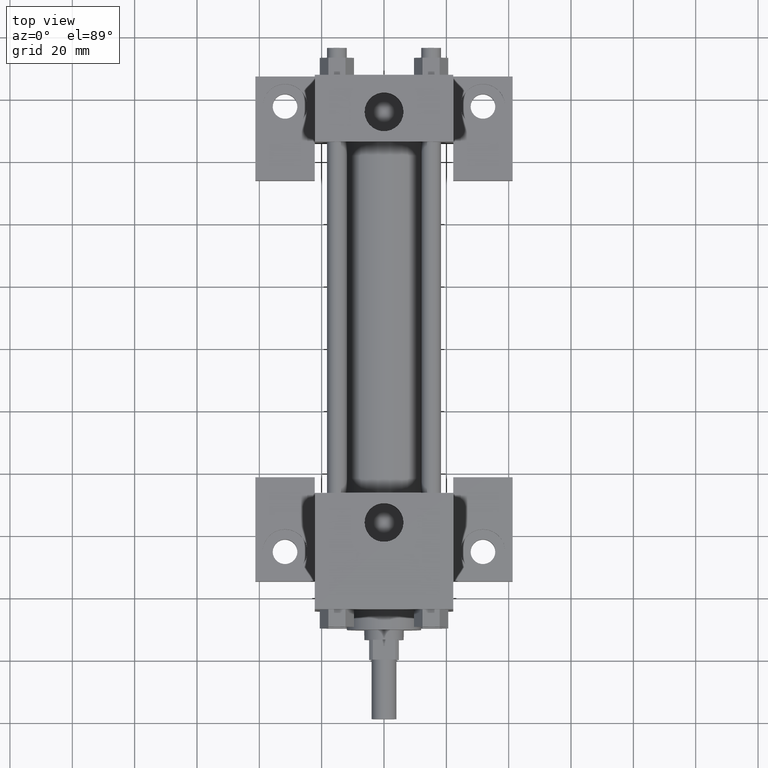
[diagram: clean part render]
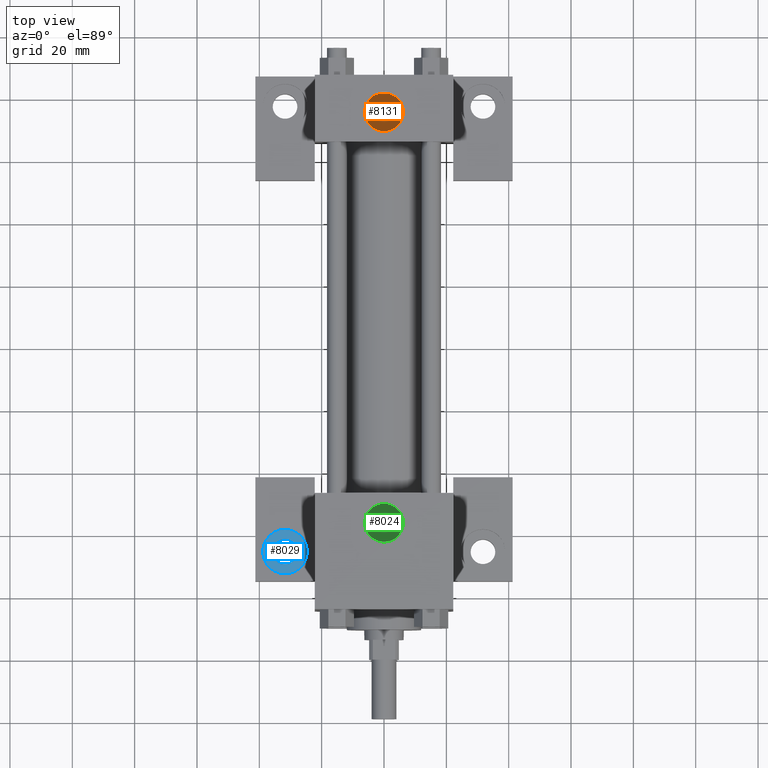
[diagram: same view with three faces highlighted in distinct colors, each labeled with its STEP entity id]
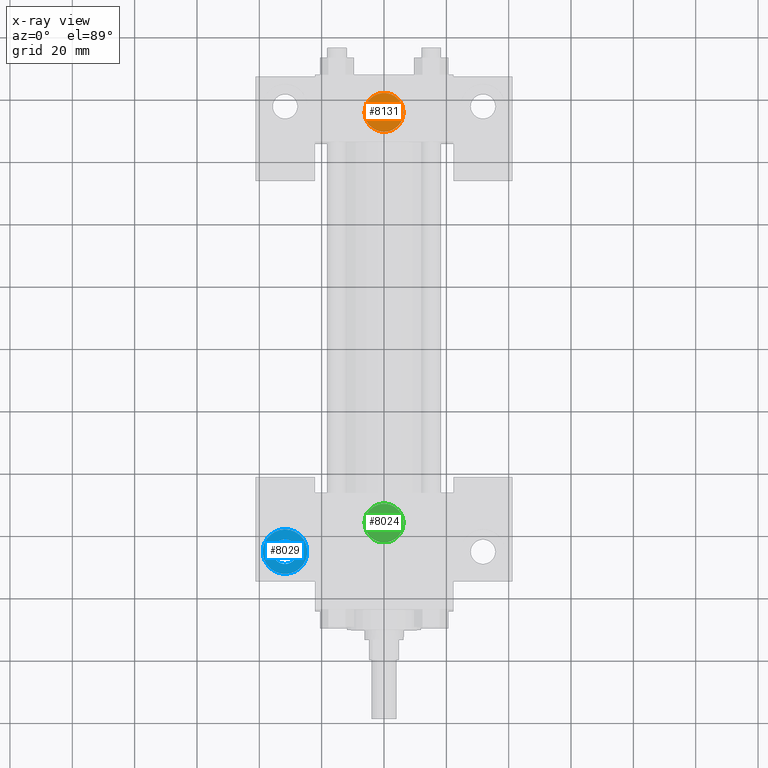
[diagram: x-ray of the same camera — body ghosted, the three highlighted faces saturated]
A machine part, top view with three faces highlighted in distinct colors.
The next image is the same camera in x-ray (body ghosted, the three faces saturated) — at least one of them is partly hidden behind the body in this view.
Their STEP definitions:

[orange] entity #8131 — the highlighted planar face has unit normal (0, 0, -1).
#5125=EDGE_CURVE('',#5131,#5131,#5126,.T.);
#5126=CIRCLE('',#5127,6.243320000E+000);
#5127=AXIS2_PLACEMENT_3D('',#5128,#5129,#5130);
#5128=CARTESIAN_POINT('',(0.000000000E+000,1.754187500E+002,1.219200000E+001));
#5129=DIRECTION('',(0.0E+000,0.0E+000,1.0E+000));
#5130=DIRECTION('',(-1.0E+000,0.0E+000,0.0E+000));
#5131=VERTEX_POINT('',#5132);
#5132=CARTESIAN_POINT('',(-6.243320000E+000,1.754187500E+002,1.219200000E+001));
#5147=FACE_OUTER_BOUND('',#5148,.T.);
#5148=EDGE_LOOP('',(#5149));
#5149=ORIENTED_EDGE('',*,*,#5125,.T.);
#5150=PLANE('',#5151);
#5151=AXIS2_PLACEMENT_3D('',#5152,#5153,#5154);
#5152=CARTESIAN_POINT('',(0.000000000E+000,1.754187500E+002,1.219200000E+001));
#5153=DIRECTION('',(0.0E+000,0.0E+000,-1.0E+000));
#5154=DIRECTION('',(-1.0E+000,0.0E+000,0.0E+000));
#8131=ADVANCED_FACE('',(#5147),#5150,.F.);

[blue] entity #8029 — the highlighted planar face has unit normal (0, 0, -1).
#1473=EDGE_CURVE('',#1479,#1479,#1474,.T.);
#1474=CIRCLE('',#1475,7.143750000E+000);
#1475=AXIS2_PLACEMENT_3D('',#1476,#1477,#1478);
#1476=CARTESIAN_POINT('',(-3.175000000E+001,3.492500000E+001,-1.270000000E+001));
#1477=DIRECTION('',(0.0E+000,0.0E+000,1.0E+000));
#1478=DIRECTION('',(0.0E+000,-1.0E+000,0.0E+000));
#1479=VERTEX_POINT('',#1480);
#1480=CARTESIAN_POINT('',(-3.175000000E+001,2.778125000E+001,-1.270000000E+001));
#1495=FACE_OUTER_BOUND('',#1497,.T.);
#1496=FACE_BOUND('',#1498,.T.);
#1497=EDGE_LOOP('',(#1499));
#1498=EDGE_LOOP('',(#1500));
#1499=ORIENTED_EDGE('',*,*,#1473,.T.);
#1500=ORIENTED_EDGE('',*,*,#1501,.F.);
#1501=EDGE_CURVE('',#1507,#1507,#1502,.F.);
#1502=CIRCLE('',#1503,3.968750000E+000);
#1503=AXIS2_PLACEMENT_3D('',#1504,#1505,#1506);
#1504=CARTESIAN_POINT('',(-3.175000000E+001,3.492500000E+001,-1.270000000E+001));
#1505=DIRECTION('',(0.0E+000,0.0E+000,-1.0E+000));
#1506=DIRECTION('',(-1.0E+000,0.0E+000,0.0E+000));
#1507=VERTEX_POINT('',#1508);
#1508=CARTESIAN_POINT('',(-3.571875000E+001,3.492500000E+001,-1.270000000E+001));
#1509=PLANE('',#1510);
#1510=AXIS2_PLACEMENT_3D('',#1511,#1512,#1513);
#1511=CARTESIAN_POINT('',(-3.175000000E+001,3.492500000E+001,-1.270000000E+001));
#1512=DIRECTION('',(0.0E+000,0.0E+000,-1.0E+000));
#1513=DIRECTION('',(-1.0E+000,0.0E+000,0.0E+000));
#8029=ADVANCED_FACE('',(#1495,#1496),#1509,.F.);

[green] entity #8024 — the highlighted planar face has unit normal (0, 0, -1).
#1373=EDGE_CURVE('',#1379,#1379,#1374,.T.);
#1374=CIRCLE('',#1375,6.243320000E+000);
#1375=AXIS2_PLACEMENT_3D('',#1376,#1377,#1378);
#1376=CARTESIAN_POINT('',(0.000000000E+000,4.365625000E+001,1.219200000E+001));
#1377=DIRECTION('',(0.0E+000,0.0E+000,1.0E+000));
#1378=DIRECTION('',(-1.0E+000,0.0E+000,0.0E+000));
#1379=VERTEX_POINT('',#1380);
#1380=CARTESIAN_POINT('',(-6.243320000E+000,4.365625000E+001,1.219200000E+001));
#1395=FACE_OUTER_BOUND('',#1396,.T.);
#1396=EDGE_LOOP('',(#1397));
#1397=ORIENTED_EDGE('',*,*,#1373,.T.);
#1398=PLANE('',#1399);
#1399=AXIS2_PLACEMENT_3D('',#1400,#1401,#1402);
#1400=CARTESIAN_POINT('',(0.000000000E+000,4.365625000E+001,1.219200000E+001));
#1401=DIRECTION('',(0.0E+000,0.0E+000,-1.0E+000));
#1402=DIRECTION('',(-1.0E+000,0.0E+000,0.0E+000));
#8024=ADVANCED_FACE('',(#1395),#1398,.F.);